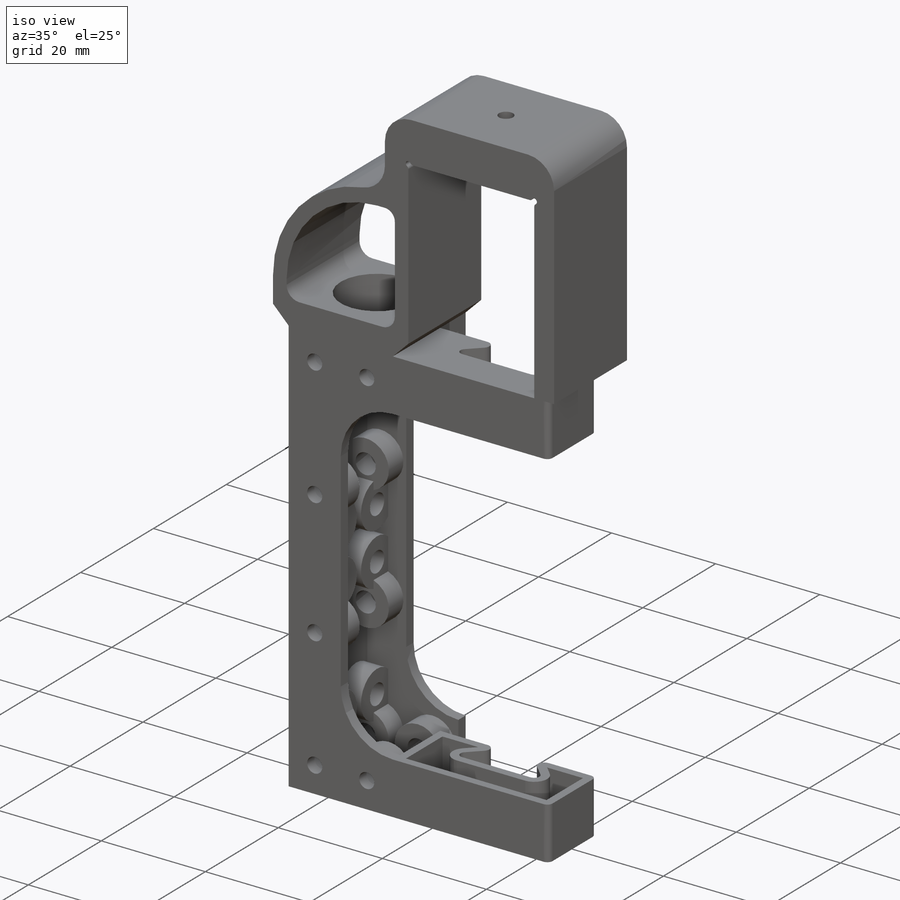
[diagram: iso view]
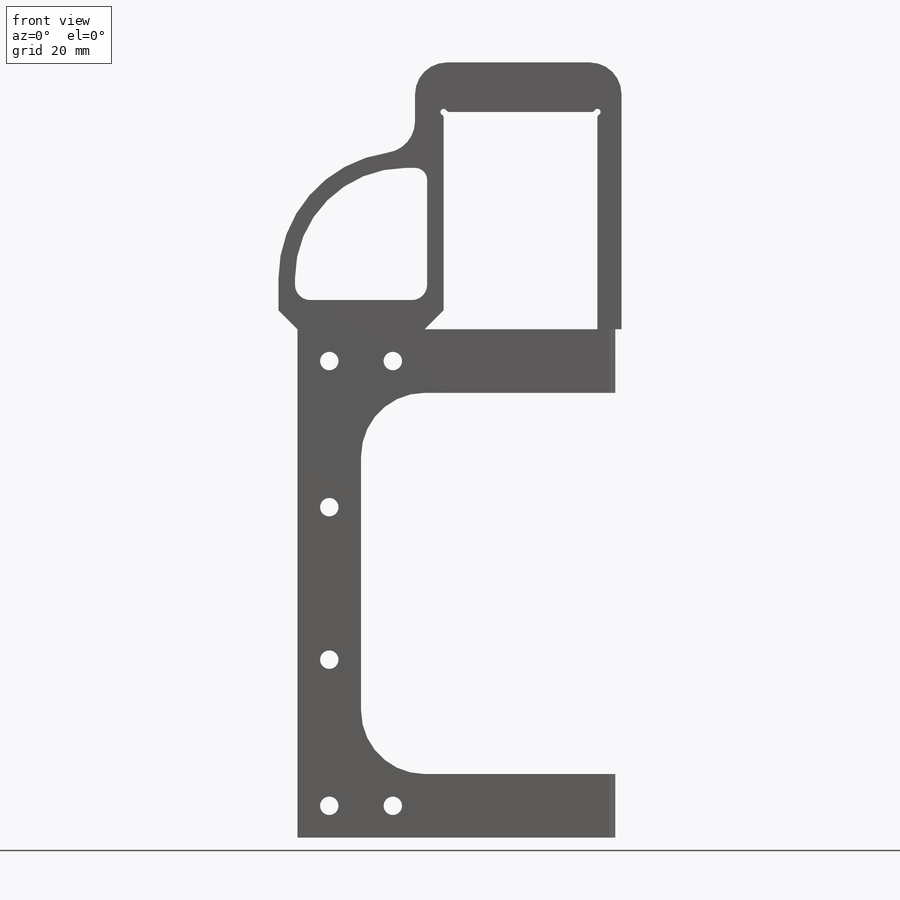
[diagram: front view]
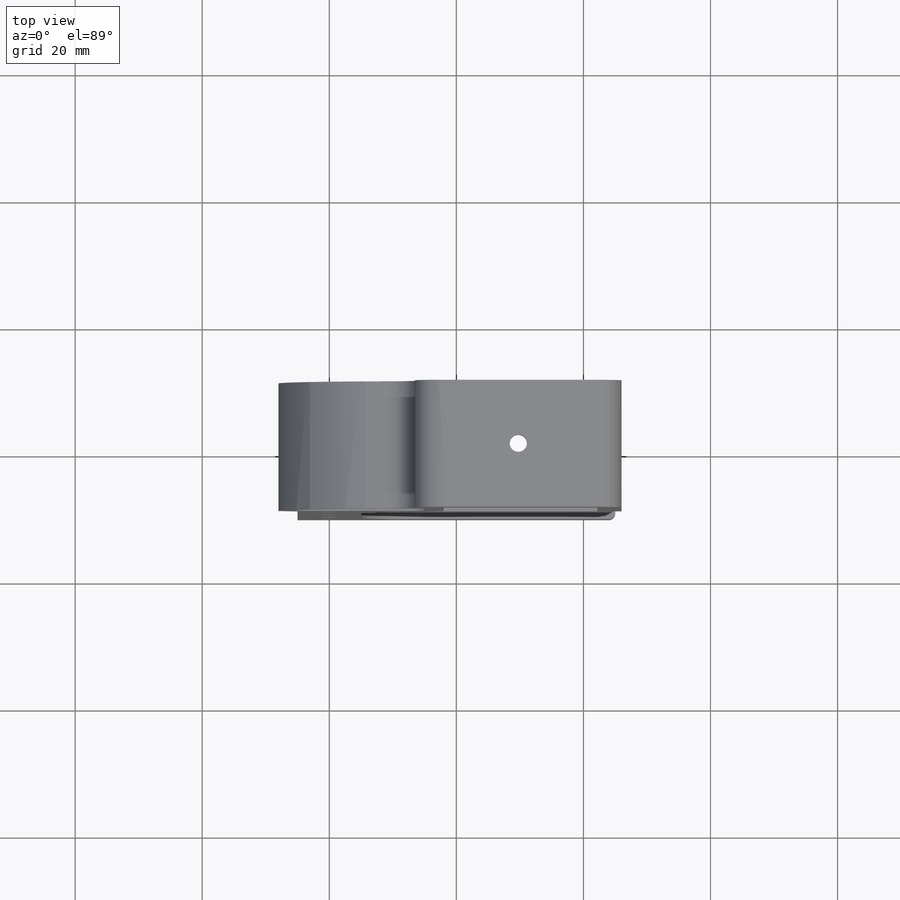
[diagram: top view]
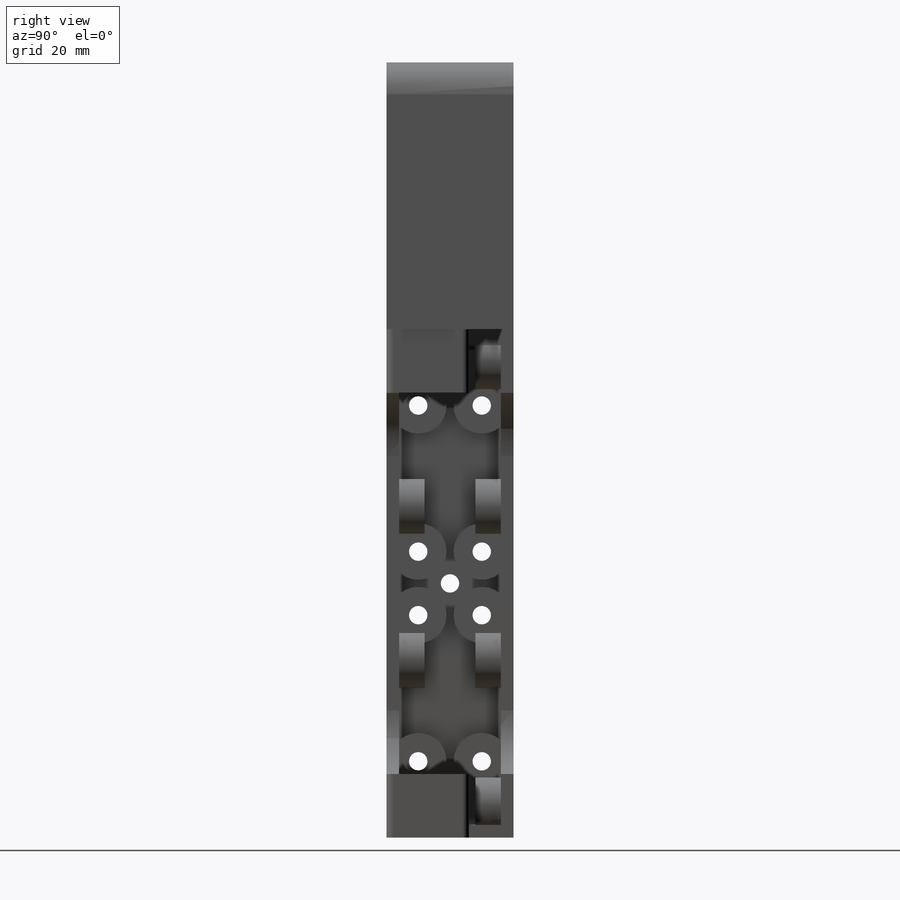
[diagram: right view]
SOLIDWORKS PART (.sldprt)
format: sldprt  version: not decoded by parser v0  size: 1,044,992 bytes
history: native  units: mm
features: sketch x25, extrude x9, fillet x7, cut_extrude x6, hole x5, mirror x3, material x1, chamfer x1 (+12 scaffold rows collapsed)
feature tree (69):
  scaffold x12  (default folders/planes/origin — collapsed)
  material  "ABS"
  sketch  "Sketch1"  dims[D1=10.0mm D2=80.0mm]
  extrude  "Boss-Extrude1"  Depth=10mm
  sketch  "Sketch2"  dims[D1=10.0mm]
  extrude  "Boss-Extrude2"  Depth=10mm
  sketch  "Sketch3"  dims[D1=13.5mm D2=2.5mm]
  extrude  "Boss-Extrude3"  Depth=10mm
  sketch  "Sketch4"
  extrude  "Boss-Extrude4"  Depth=10mm
  sketch  "Sketch5"  dims[D1=2.0mm D2=2.0mm D3=7.5mm]
  cut_extrude  "Cut-Extrude1"  Depth=2.5mm
  hole  "M2.5 Clearance Hole1"  Diameter=2.9mm Depth=20mm
  sketch  "Sketch7"  dims[D1=5.0mm D2=23.0mm D3=10.0mm]
  sketch  "Sketch8"  dims[hole-wizard template sketch: 60 standard entries collapsed; hole parameters kept: c18.Thru Hole Depth=20.0mm]
  mirror  "Mirror1"
  sketch  "Sketch9"  dims[c1.D1=3.9mm c1.D2=3.9mm c1.D3=3.9mm c1.D5=3.9mm c1.D7=3.9mm c1.D9=3.9mm c1.D11=3.9mm c1.D13=3.9mm c2.D2=2.5mm c2.D4=2.5mm c2.D6=2.5mm c2.D8=2.5mm c2.D10=2.5mm c2.D12=2.5mm c2.D14=2.5mm]
  extrude  "Boss-Extrude5"  Depth=4mm
  mirror  "Mirror2"
  hole  "M2.5 Clearance Hole2"  Diameter=2.9mm Depth=20mm
  sketch  "Sketch11"  dims[D1=40.0mm D2=10.0mm D3=10.0mm]
  sketch  "Sketch10"  dims[hole-wizard template sketch: 47 standard entries collapsed; hole parameters kept: c15.Hole Depth=20.0mm c15.D3=~14.816244mm c15.Drill Angle=180.0deg]
  sketch  "Sketch15"
  cut_extrude  "Cut-Extrude2"  Depth=30mm
  hole  "M2.5 Clearance Hole3"  Diameter=2.9mm Depth=11.5mm
  sketch  "Sketch14"  dims[D1=10.0mm D2=12.0mm]
  sketch  "Sketch13"  dims[hole-wizard template sketch: 47 standard entries collapsed; hole parameters kept: c15.Hole Depth=11.5mm c15.D3=~14.816244mm c15.Drill Angle=180.0deg]
  sketch  "Sketch12"  dims[D1=3.9mm D2=2.5mm]
  extrude  "Boss-Extrude6"  Depth=4mm
  fillet  "Fillet2"  Radius=1mm
  sketch  "Sketch16"  dims[D1=5.0mm D2=3.0mm]
  extrude  "Boss-Extrude7"  [1 undecoded]
  chamfer  "Chamfer2"  Distance=3mm Angle=45deg
  fillet  "Fillet3"  Radius=2mm
  sketch  "Sketch19"  dims[D1=0.4mm]
  cut_extrude  "Cut-Extrude3"  Depth=29mm
  sketch  "Sketch20"  dims[D1=14.0mm D2=5.0mm]
  cut_extrude  "Cut-Extrude4"  Depth=6.5mm
  fillet  "Fillet4"  Radius=10mm
  sketch  "Sketch21"  dims[c1.D1=3.0mm c1.D2=3.0mm c1.D3=6.0mm c1.D4=6.0mm c1.D5=12.0mm c1.D6=12.0mm c2.D6=45.0deg c2.D7=18.0mm c2.D8=6.0mm]
  extrude  "Boss-Extrude8"  Depth=10mm
  fillet  "Fillet5"  Radius=1mm
  fillet  "Fillet6"  Radius=1.2mm
  sketch  "Sketch23"  dims[D1=1.5mm]
  cut_extrude  "Cut-Extrude7"  Depth=8.5mm
  mirror  "Mirror4"
  sketch  "Sketch24"  dims[D1=28.0mm D2=42.0mm D3=7.8mm D4=3.8mm]
  extrude  "Boss-Extrude9"  [1 undecoded]
  fillet  "Fillet7"  Radius=5mm
  sketch  "Sketch25"  dims[D1=1.0mm]
  cut_extrude  "Cut-Extrude8"  [1 undecoded]
  fillet  "Fillet8"  Radius=0.5mm
  hole  "M2.5 Clearance Hole4"  Diameter=2.7mm Depth=7.8mm
  sketch  "Sketch27"
  sketch  "Sketch28"  dims[hole-wizard template sketch: 60 standard entries collapsed; hole parameters kept: c18.Thru Hole Depth=7.8mm]
  hole  "Hole1"  Diameter=3.9mm Depth=4.45mm
  sketch  "Sketch30"
  sketch  "Sketch29"  dims[Diameter=3.9mm Depth=4.45mm]
decode coverage: 46 of 56 modeling features carry decoded parameters
note: ~ marks probable driven/reference dimensions
note: 3 parameter values undecoded
summary: Diameter pulled from absorbed wizard sketch | no parameter record found for 3 features
note: suppression state not decoded; provenance and decode notes live in map.json
